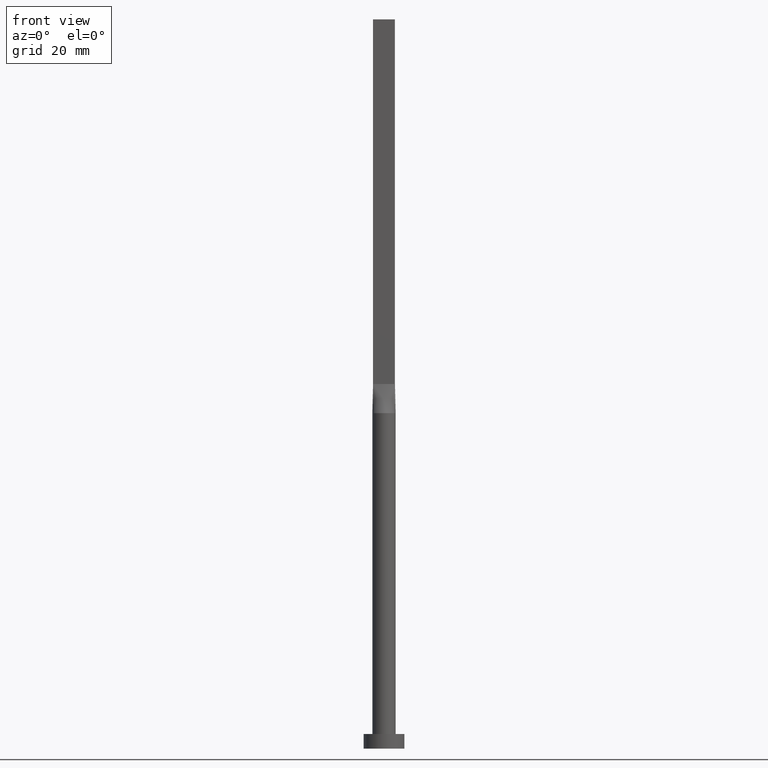
[diagram: clean part render]
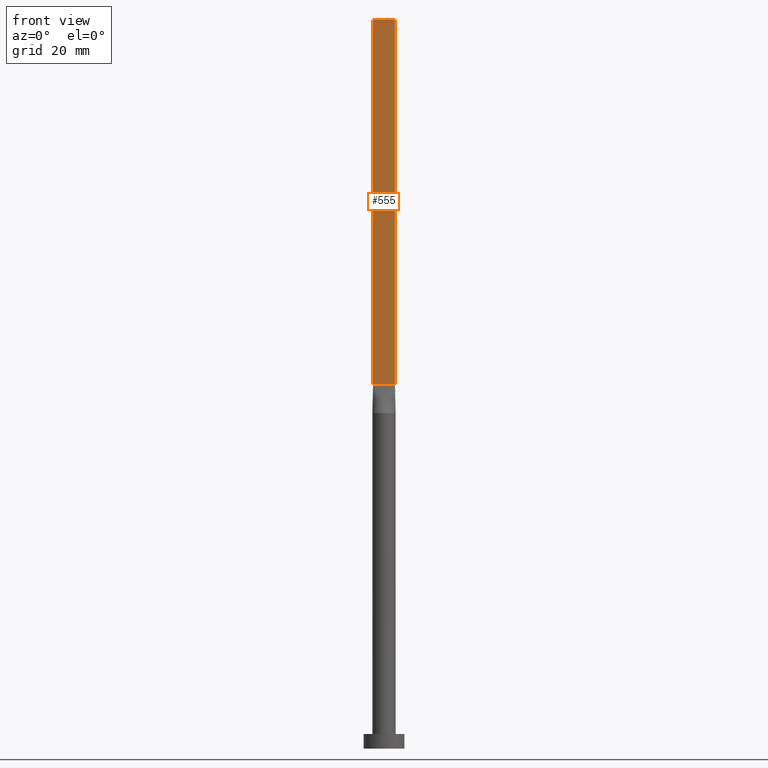
[diagram: same view with one face highlighted and labeled with its STEP entity id]
A machine part, front view. The second image highlights one B-rep face of the part: STEP entity #555.
In plain terms, the highlighted planar face has unit normal (0, 1, -0).
Its self-contained STEP definition (entity closure, byte-faithful):
#7 = EDGE_CURVE ( 'NONE', #567, #223, #100, .T. ) ;
#19 = VERTEX_POINT ( 'NONE', #63 ) ;
#53 = DIRECTION ( 'NONE',  ( -0.000000000000000000, -0.000000000000000000, -1.000000000000000000 ) ) ;
#55 = EDGE_LOOP ( 'NONE', ( #164, #468, #330, #376 ) ) ;
#63 = CARTESIAN_POINT ( 'NONE',  ( -3.750000000000000000, -0.7499999999999993339, 125.0000000000000000 ) ) ;
#69 = DIRECTION ( 'NONE',  ( -1.000000000000000000, 5.782411586589357392E-17, 0.000000000000000000 ) ) ;
#72 = DIRECTION ( 'NONE',  ( 5.782411586589357392E-17, 1.000000000000000000, -0.000000000000000000 ) ) ;
#74 = CARTESIAN_POINT ( 'NONE',  ( -3.750000000000000000, -0.7499999999999993339, 250.0000000000000000 ) ) ;
#78 = CARTESIAN_POINT ( 'NONE',  ( 3.750000000000000000, -0.7499999999999997780, 125.0000000000000000 ) ) ;
#87 = VECTOR ( 'NONE', #98, 1000.000000000000000 ) ;
#98 = DIRECTION ( 'NONE',  ( 1.000000000000000000, -5.782411586589357392E-17, 0.000000000000000000 ) ) ;
#100 = LINE ( 'NONE', #322, #558 ) ;
#164 = ORIENTED_EDGE ( 'NONE', *, *, #355, .T. ) ;
#166 = VECTOR ( 'NONE', #579, 1000.000000000000000 ) ;
#169 = EDGE_CURVE ( 'NONE', #367, #19, #537, .T. ) ;
#220 = EDGE_CURVE ( 'NONE', #367, #567, #348, .T. ) ;
#223 = VERTEX_POINT ( 'NONE', #78 ) ;
#255 = FACE_OUTER_BOUND ( 'NONE', #55, .T. ) ;
#274 = CARTESIAN_POINT ( 'NONE',  ( -3.750000000000000000, -0.7499999999999993339, 250.0000000000000000 ) ) ;
#279 = CARTESIAN_POINT ( 'NONE',  ( -3.750000000000000000, -0.7499999999999993339, 125.0000000000000000 ) ) ;
#313 = CARTESIAN_POINT ( 'NONE',  ( -3.750000000000000000, -0.7499999999999993339, 250.0000000000000000 ) ) ;
#322 = CARTESIAN_POINT ( 'NONE',  ( 3.750000000000000000, -0.7499999999999997780, 250.0000000000000000 ) ) ;
#330 = ORIENTED_EDGE ( 'NONE', *, *, #220, .F. ) ;
#348 = LINE ( 'NONE', #527, #166 ) ;
#355 = EDGE_CURVE ( 'NONE', #19, #223, #402, .T. ) ;
#367 = VERTEX_POINT ( 'NONE', #274 ) ;
#376 = ORIENTED_EDGE ( 'NONE', *, *, #169, .T. ) ;
#402 = LINE ( 'NONE', #279, #87 ) ;
#439 = AXIS2_PLACEMENT_3D ( 'NONE', #74, #72, #69 ) ;
#468 = ORIENTED_EDGE ( 'NONE', *, *, #7, .F. ) ;
#477 = PLANE ( 'NONE',  #439 ) ;
#490 = DIRECTION ( 'NONE',  ( -0.000000000000000000, -0.000000000000000000, -1.000000000000000000 ) ) ;
#511 = VECTOR ( 'NONE', #490, 1000.000000000000000 ) ;
#527 = CARTESIAN_POINT ( 'NONE',  ( -3.750000000000000000, -0.7499999999999993339, 250.0000000000000000 ) ) ;
#537 = LINE ( 'NONE', #313, #511 ) ;
#555 = ADVANCED_FACE ( 'NONE', ( #255 ), #477, .F. ) ;
#558 = VECTOR ( 'NONE', #53, 1000.000000000000000 ) ;
#567 = VERTEX_POINT ( 'NONE', #571 ) ;
#571 = CARTESIAN_POINT ( 'NONE',  ( 3.750000000000000000, -0.7499999999999997780, 250.0000000000000000 ) ) ;
#579 = DIRECTION ( 'NONE',  ( 1.000000000000000000, -5.782411586589357392E-17, 0.000000000000000000 ) ) ;